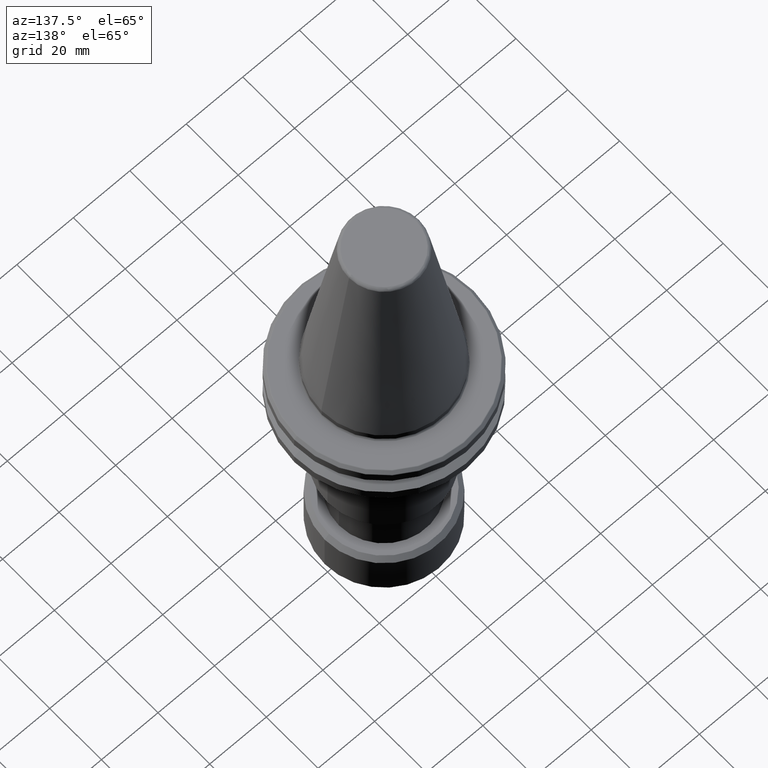
[diagram: clean part render]
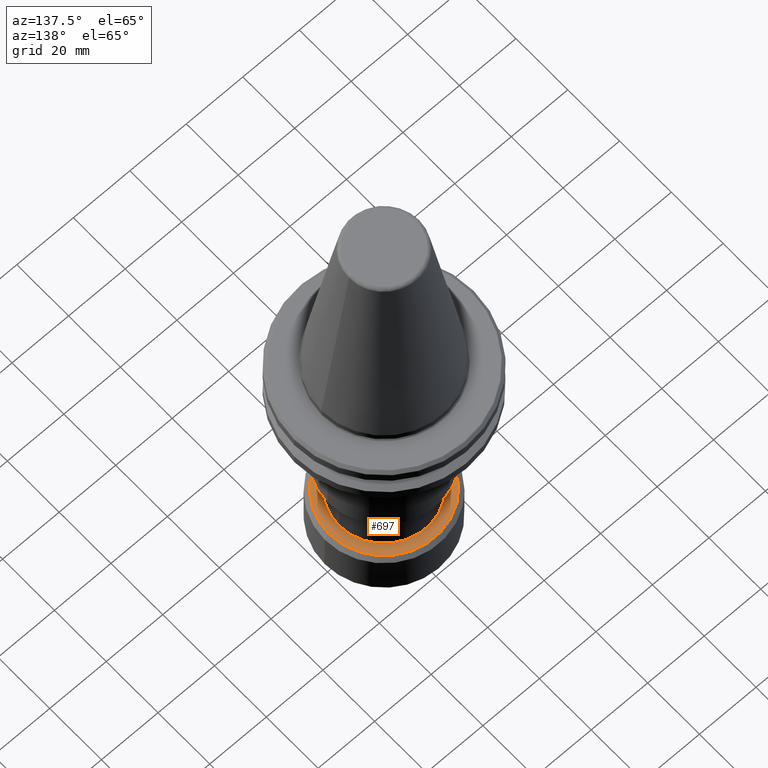
[diagram: same view with one face highlighted and labeled with its STEP entity id]
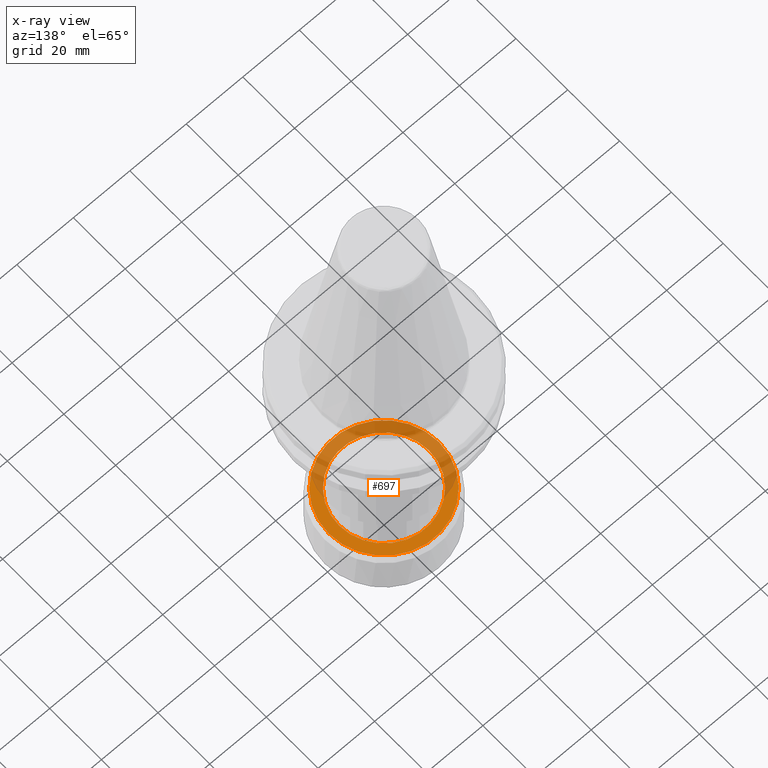
[diagram: x-ray of the same camera — body ghosted, the highlighted face saturated]
A machine part, auxiliary view. The second image highlights one B-rep face of the part: STEP entity #697.
The next image is the same camera in x-ray: the body ghosted, the highlighted face saturated — about 50% of this face is hidden behind the body in this view.
In plain terms, the highlighted planar face has unit normal (0, 0, -1).
Its self-contained STEP definition (entity closure, byte-faithful):
#18 = EDGE_CURVE ( 'NONE', #1295, #1066, #481, .T. ) ;
#32 = EDGE_CURVE ( 'NONE', #297, #407, #1148, .T. ) ;
#52 = FACE_BOUND ( 'NONE', #155, .T. ) ;
#67 = DIRECTION ( 'NONE',  ( 1.000000000000000000, 0.0000000000000000000, 0.0000000000000000000 ) ) ;
#78 = CIRCLE ( 'NONE', #462, 15.95000000000000300 ) ;
#155 = EDGE_LOOP ( 'NONE', ( #1171, #738 ) ) ;
#162 = CARTESIAN_POINT ( 'NONE',  ( 1.239088197126274700E-015, 0.0000000000000000000, -79.99999999999995700 ) ) ;
#200 = DIRECTION ( 'NONE',  ( -1.000000000000000000, 0.0000000000000000000, 0.0000000000000000000 ) ) ;
#268 = DIRECTION ( 'NONE',  ( 1.000000000000000000, 0.0000000000000000000, 0.0000000000000000000 ) ) ;
#279 = DIRECTION ( 'NONE',  ( -4.350403701509233400E-016, 0.0000000000000000000, 1.000000000000000000 ) ) ;
#297 = VERTEX_POINT ( 'NONE', #1065 ) ;
#388 = DIRECTION ( 'NONE',  ( 3.304235192336774000E-016, 0.0000000000000000000, -1.000000000000000000 ) ) ;
#407 = VERTEX_POINT ( 'NONE', #1205 ) ;
#462 = AXIS2_PLACEMENT_3D ( 'NONE', #1061, #1496, #67 ) ;
#481 = CIRCLE ( 'NONE', #1459, 15.95000000000000300 ) ;
#581 = ORIENTED_EDGE ( 'NONE', *, *, #1074, .F. ) ;
#617 = DIRECTION ( 'NONE',  ( -1.000000000000000000, 0.0000000000000000000, -0.0000000000000000000 ) ) ;
#670 = DIRECTION ( 'NONE',  ( 0.0000000000000000000, 0.0000000000000000000, -1.000000000000000000 ) ) ;
#677 = CIRCLE ( 'NONE', #1046, 19.49999999999994700 ) ;
#697 = ADVANCED_FACE ( 'NONE', ( #1387, #52 ), #877, .F. ) ;
#738 = ORIENTED_EDGE ( 'NONE', *, *, #18, .F. ) ;
#774 = ORIENTED_EDGE ( 'NONE', *, *, #32, .F. ) ;
#785 = DIRECTION ( 'NONE',  ( -1.000000000000000000, 0.0000000000000000000, 0.0000000000000000000 ) ) ;
#877 = PLANE ( 'NONE',  #1456 ) ;
#955 = CARTESIAN_POINT ( 'NONE',  ( 15.95000000000000300, 0.0000000000000000000, -79.99999999999998600 ) ) ;
#993 = CARTESIAN_POINT ( 'NONE',  ( -15.95000000000000300, 1.953311644640028500E-015, -79.99999999999998600 ) ) ;
#1033 = EDGE_CURVE ( 'NONE', #1066, #1295, #78, .T. ) ;
#1046 = AXIS2_PLACEMENT_3D ( 'NONE', #1368, #1203, #200 ) ;
#1061 = CARTESIAN_POINT ( 'NONE',  ( -3.018698972393786200E-030, 0.0000000000000000000, -79.99999999999998600 ) ) ;
#1065 = CARTESIAN_POINT ( 'NONE',  ( -19.49999999999994700, 0.0000000000000000000, -79.99999999999995700 ) ) ;
#1066 = VERTEX_POINT ( 'NONE', #955 ) ;
#1074 = EDGE_CURVE ( 'NONE', #407, #297, #677, .T. ) ;
#1148 = CIRCLE ( 'NONE', #1544, 19.49999999999994700 ) ;
#1164 = CARTESIAN_POINT ( 'NONE',  ( -3.018698972393786200E-030, 0.0000000000000000000, -79.99999999999998600 ) ) ;
#1171 = ORIENTED_EDGE ( 'NONE', *, *, #1033, .F. ) ;
#1203 = DIRECTION ( 'NONE',  ( 3.304235192336774000E-016, 0.0000000000000000000, -1.000000000000000000 ) ) ;
#1205 = CARTESIAN_POINT ( 'NONE',  ( 19.49999999999994700, 2.479909768273387100E-015, -79.99999999999995700 ) ) ;
#1260 = CARTESIAN_POINT ( 'NONE',  ( 19.73400000000000200, -19.73400000000000200, -80.00000000000000000 ) ) ;
#1295 = VERTEX_POINT ( 'NONE', #993 ) ;
#1333 = EDGE_LOOP ( 'NONE', ( #774, #581 ) ) ;
#1368 = CARTESIAN_POINT ( 'NONE',  ( 1.239088197126274700E-015, 0.0000000000000000000, -79.99999999999995700 ) ) ;
#1387 = FACE_OUTER_BOUND ( 'NONE', #1333, .T. ) ;
#1456 = AXIS2_PLACEMENT_3D ( 'NONE', #1260, #670, #617 ) ;
#1459 = AXIS2_PLACEMENT_3D ( 'NONE', #1164, #279, #268 ) ;
#1496 = DIRECTION ( 'NONE',  ( -4.350403701509233400E-016, 0.0000000000000000000, 1.000000000000000000 ) ) ;
#1544 = AXIS2_PLACEMENT_3D ( 'NONE', #162, #388, #785 ) ;